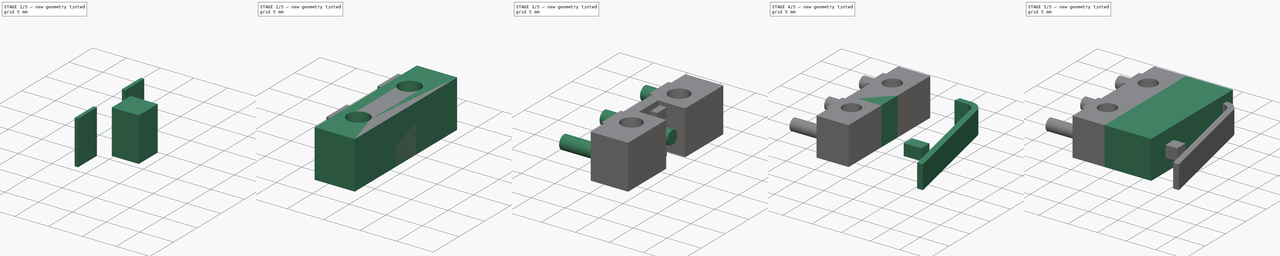
[diagram: build sequence overview — one tinted view per stage of 5, left to right]
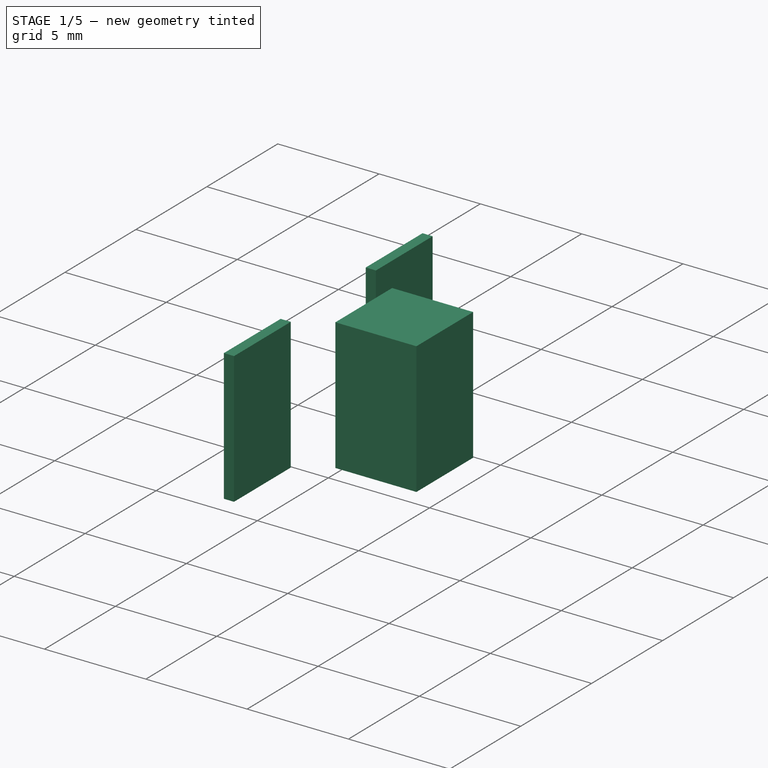
[diagram: stage 1 of 5 — iso view after this stage's code; geometry added in this stage tinted green]
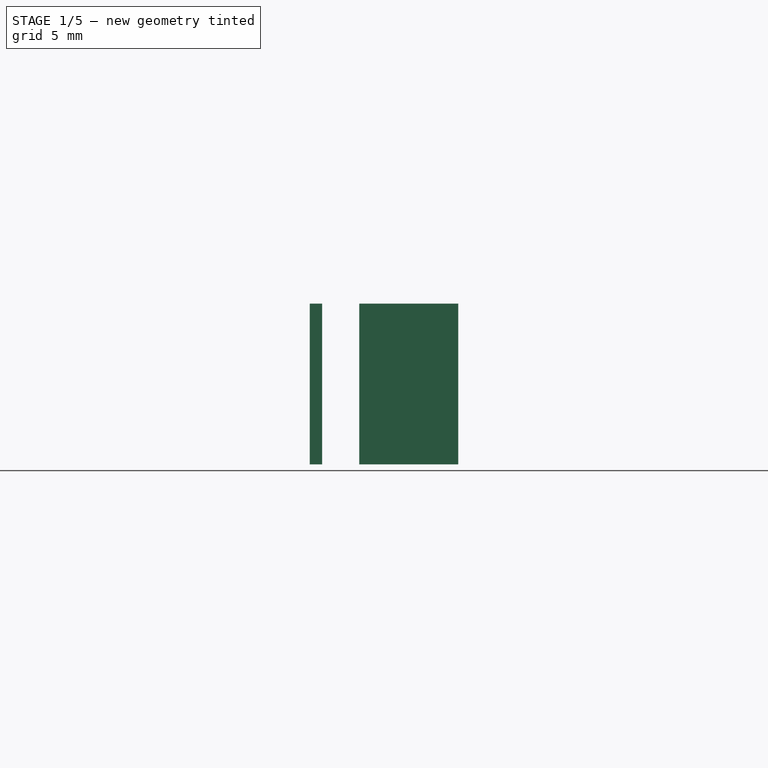
[diagram: stage 1 of 5 — front view after this stage's code; geometry added in this stage tinted green]
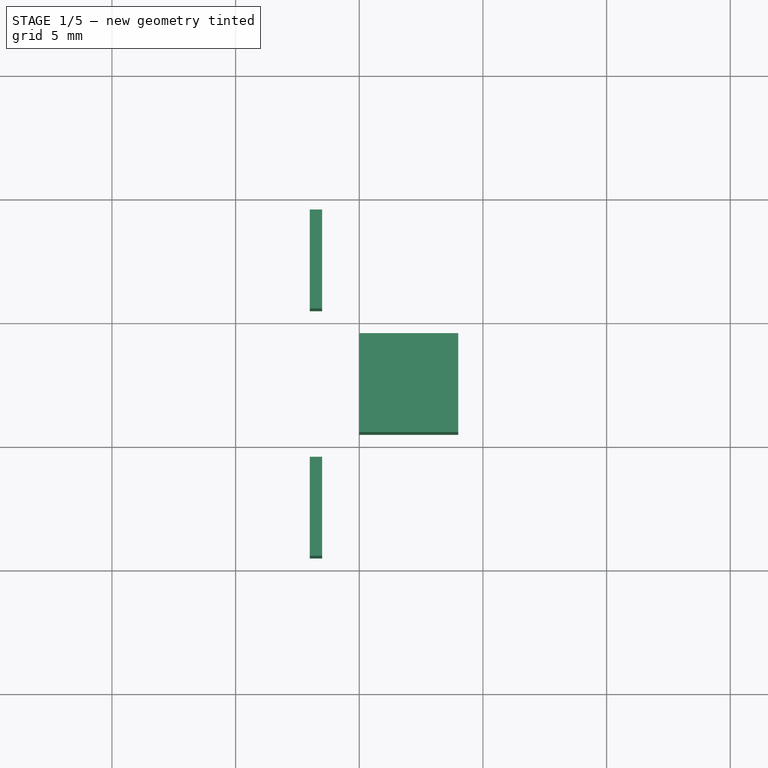
[diagram: stage 1 of 5 — top view after this stage's code; geometry added in this stage tinted green]
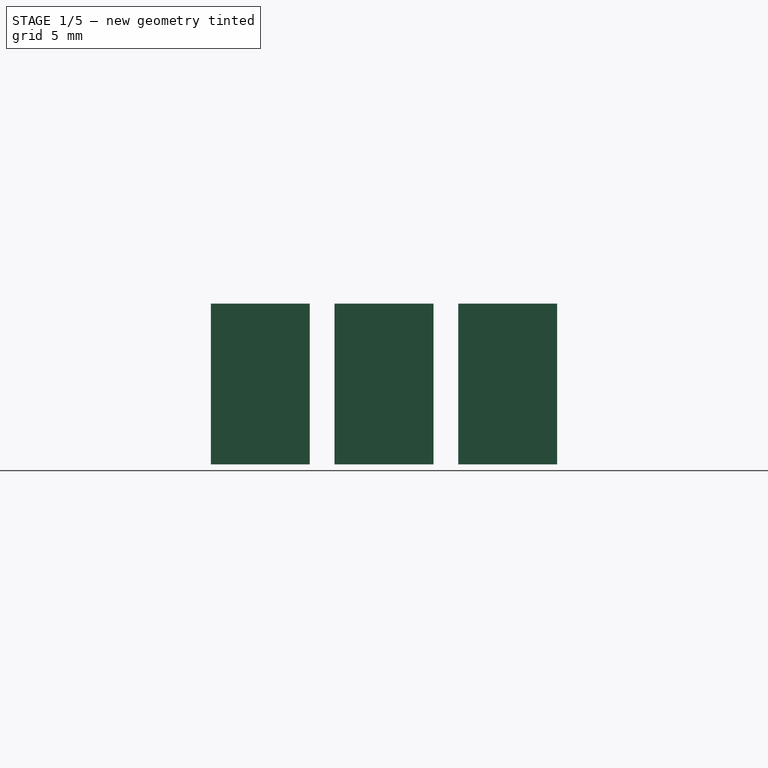
[diagram: stage 1 of 5 — right view after this stage's code; geometry added in this stage tinted green]
FCSTD DOCUMENT  (FreeCAD 0.14R3702 (Git))
Label: endstop01
License: CC-BY 3.0
LicenseURL: http://creativecommons.org/licenses/by/3.0/
objects: Part::Box×10, Part::Cut×4, Part::MultiFuse×4, Sketcher::SketchObject×3, Part::Feature×3, Part::Cylinder×2, Part::Sweep×1, PartDesign::Pad×1, App::DocumentObjectGroup×1
note: 29 computed .brp shape members not serialized (recipe doc carries the construction recipe); baked Part::Feature solids carry a one-line shape summary decoded from their .brp

FEATURE [Part::Box] Box002  label="Cubo002"
  Height = 6.5
  Length = 0.5
  Placement = pos=(8,20.5,2.25) rot=(0,0,1;0rad)
  Width = 4
FEATURE [Part::Box] Box003  label="Cubo003"
  Height = 6.5
  Length = 0.5
  Placement = pos=(8,10.5,2.25) rot=(0,0,1;0rad)
  Width = 4
FEATURE [Part::Box] Box004  label="Cubo004"
  Height = 6.5
  Length = 4
  Placement = pos=(10,15.5,2.25) rot=(0,0,1;0rad)
  Width = 4
FEATURE [Part::Box] Box005  label="Cubo005"
  Height = 6.5
  Length = 1
  Placement = pos=(11,16.5,2.25) rot=(0,0,1;0rad)
  Width = 2
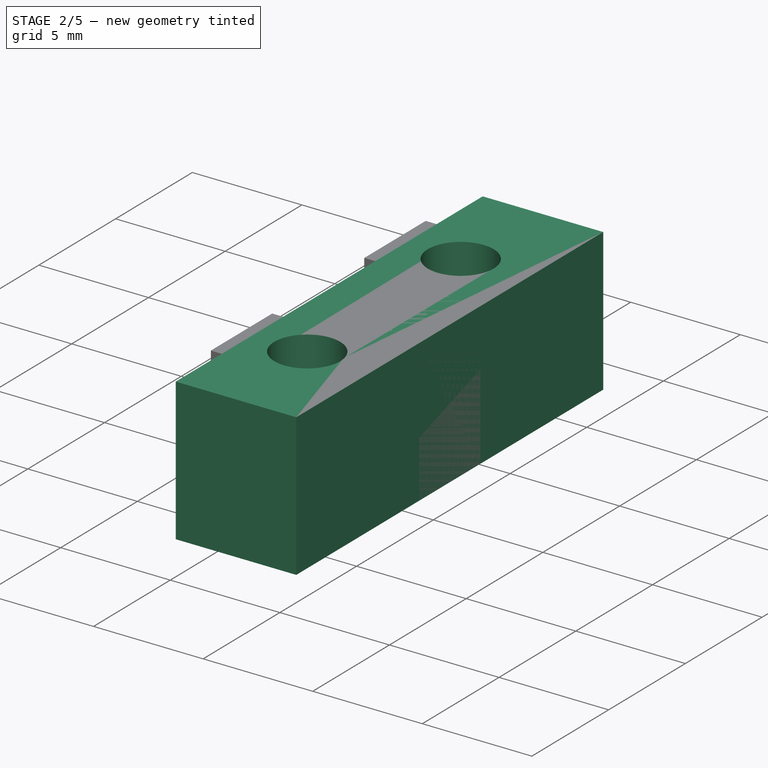
[diagram: stage 2 of 5 — iso view after this stage's code; geometry added in this stage tinted green]
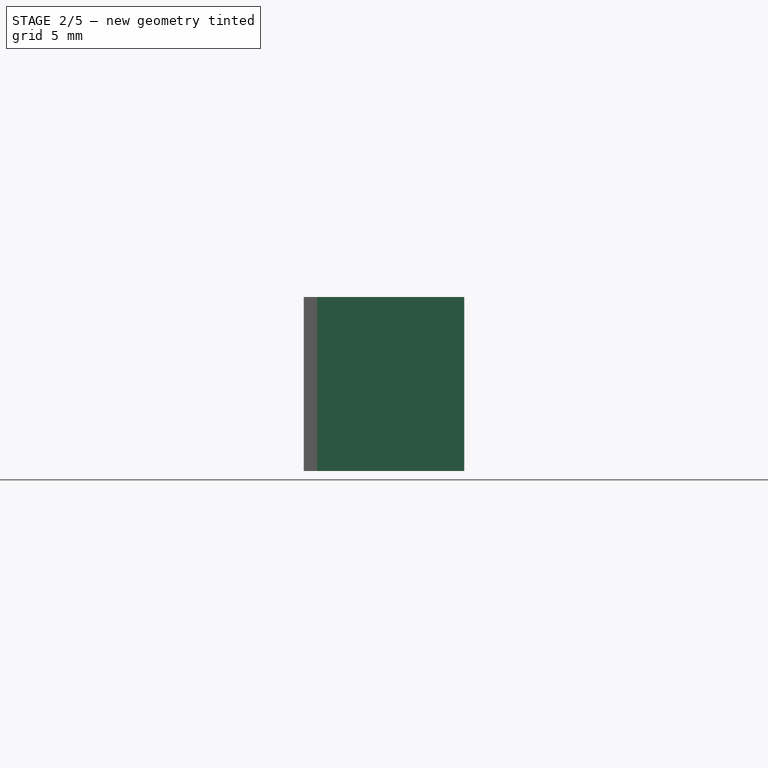
[diagram: stage 2 of 5 — front view after this stage's code; geometry added in this stage tinted green]
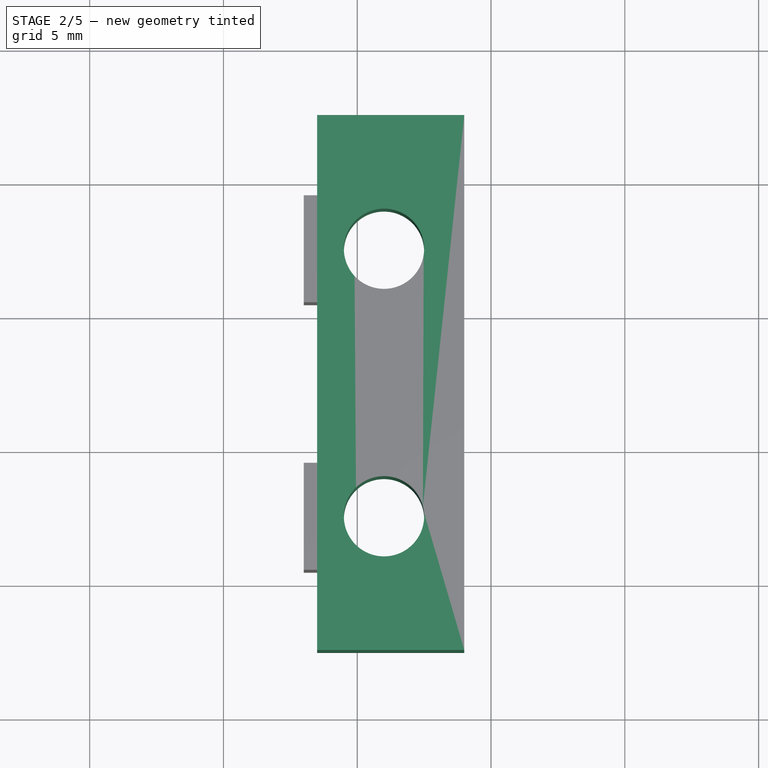
[diagram: stage 2 of 5 — top view after this stage's code; geometry added in this stage tinted green]
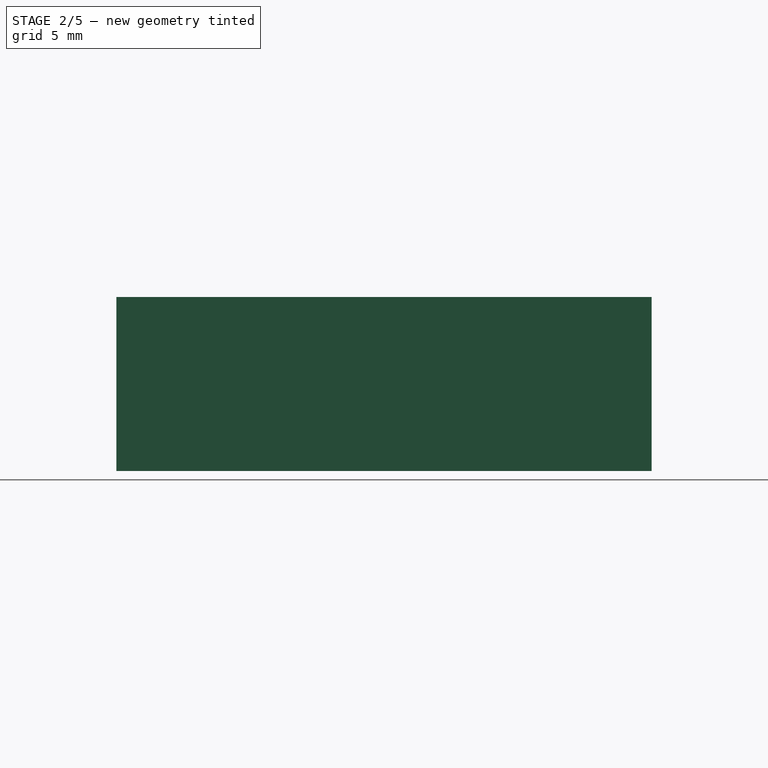
[diagram: stage 2 of 5 — right view after this stage's code; geometry added in this stage tinted green]
FEATURE [Part::Box] Box  label="Cubo"
  Height = 6.5
  Length = 5.5
  Placement = pos=(8.5,7.5,2.25) rot=(0,0,1;0rad)
  Width = 20
FEATURE [Part::Cylinder] Cylinder  label="Cilindro"
  Angle = 360
  Height = 10
  Placement = pos=(11,22.5,1) rot=(0,0,1;0rad)
  Radius = 1.5
FEATURE [Part::Cylinder] Cylinder001  label="Cilindro001"
  Angle = 360
  Height = 10
  Placement = pos=(11,12.5,1) rot=(0,0,1;0rad)
  Radius = 1.5
FEATURE [Part::Cut] Cut
  Base = -> Box
  Tool = -> Cylinder001
FEATURE [Part::Cut] Cut001
  Base = -> Cut
  Tool = -> Cylinder
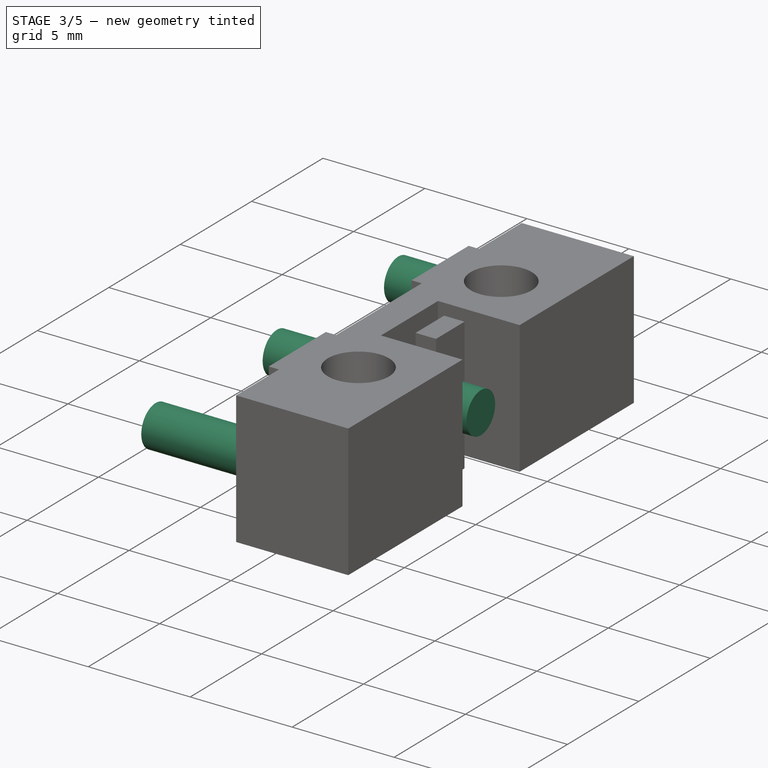
[diagram: stage 3 of 5 — iso view after this stage's code; geometry added in this stage tinted green]
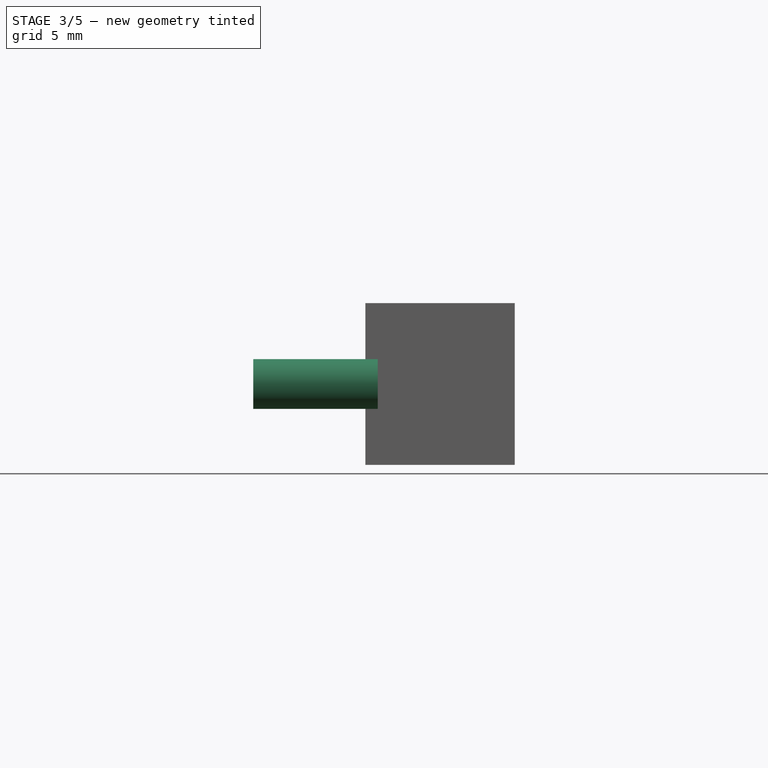
[diagram: stage 3 of 5 — front view after this stage's code; geometry added in this stage tinted green]
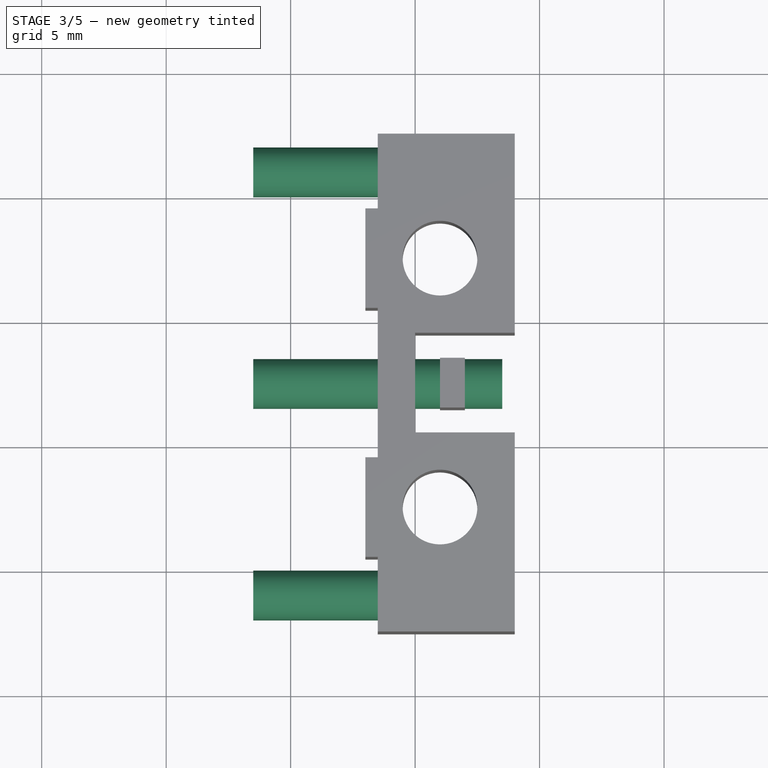
[diagram: stage 3 of 5 — top view after this stage's code; geometry added in this stage tinted green]
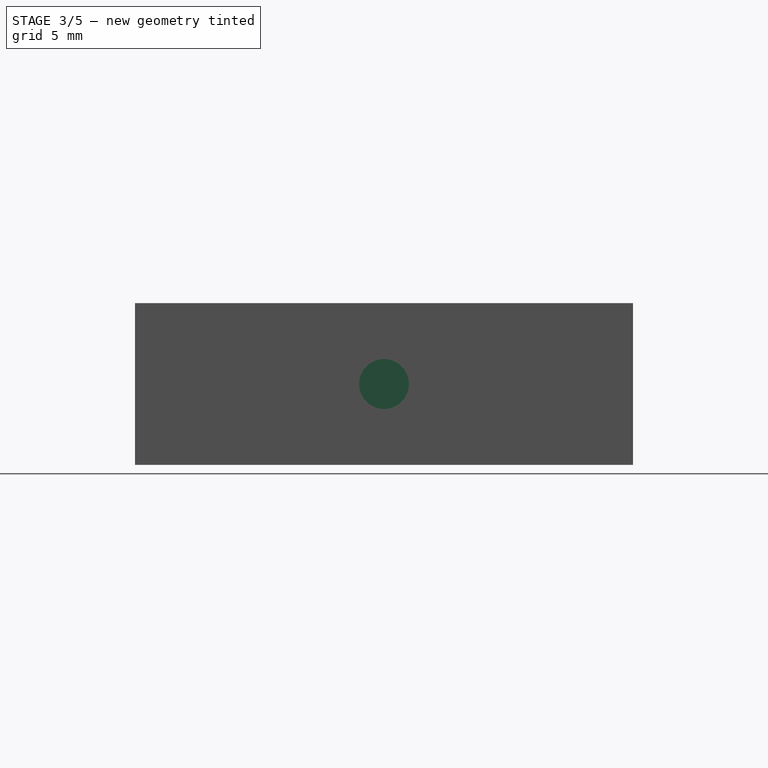
[diagram: stage 3 of 5 — right view after this stage's code; geometry added in this stage tinted green]
FEATURE [Part::MultiFuse] Fusion
  Shapes = -> [Cut001,Box002,Box003]
FEATURE [Part::Cut] Cut002
  Base = -> Fusion
  Tool = -> Box004
FEATURE [Part::MultiFuse] Fusion001
  Shapes = -> [Cut002,Box005]
FEATURE [Sketcher::SketchObject] Sketch002
  ExternalGeometry = -> [Fusion001]
  Placement = pos=(8.5,0,0) rot=(0.57735,-0.57735,-0.57735;2.0944rad)
  Support = -> Fusion001 [Face18]
  sketch-geometry (4):
    g0: Circle CenterX=-26 CenterY=5.5 CenterZ=0 NormalX=0 NormalY=0 NormalZ=1 Radius=1
    g1: Circle CenterX=-17.5 CenterY=5.5 CenterZ=0 NormalX=0 NormalY=0 NormalZ=1 Radius=1
    g2: Circle CenterX=-9 CenterY=5.5 CenterZ=0 NormalX=0 NormalY=0 NormalZ=1 Radius=1
    g3: LineSegment [constr] StartX=-27.5 StartY=5.5 StartZ=0 EndX=-7.5 EndY=5.5 EndZ=0
  constraints (13):
    c: Radius(g2) = 1
    c: Horizontal(g3)
    c: Symmetric(g-3,g-3,g3)
    c: PointOnObject(g3,g-3)
    c: PointOnObject(g3,g-4)
    c: PointOnObject(g0,g3)
    c: PointOnObject(g1,g3)
    c: PointOnObject(g2,g3)
    c: Equal(g0,g1)
    c: Equal(g1,g2)
    c: DistanceX(g-7,g1) = -3
    c: DistanceX(g2,g-4) = 1.5
    c: DistanceX(g0,g-3) = -1.5
FEATURE [PartDesign::Pad] Pad
  Length = 10
  Length2 = 100
  Midplane = true
  Reversed = true
  Sketch = -> Sketch002
  Type = 0
FEATURE [Part::Feature] Pad001  label="Inferior"
  Placement = pos=(-15,-17.5,-5.5) rot=(0,0,1;0rad)
  shape: bbox 10.5 x 20 x 6.5 mm, 37 faces (baked)
FEATURE [Part::Feature] Fusion004  label="Superior"
  Placement = pos=(-15,-17.5,-5.5) rot=(0,0,1;0rad)
  shape: bbox 14 x 20 x 6.5 mm, 19 faces (baked)
FEATURE [Part::Feature] Sweep001  label="Pestaña001"
  Placement = pos=(-15,-17.5,-5.5) rot=(0,0,1;0rad)
  shape: bbox 8.605 x 20.99 x 4 mm, 10 faces (baked)
FEATURE [App::DocumentObjectGroup] Grupo  label="Pieza Terminada"
  Group = -> [Pad001,Fusion004,Sweep001]
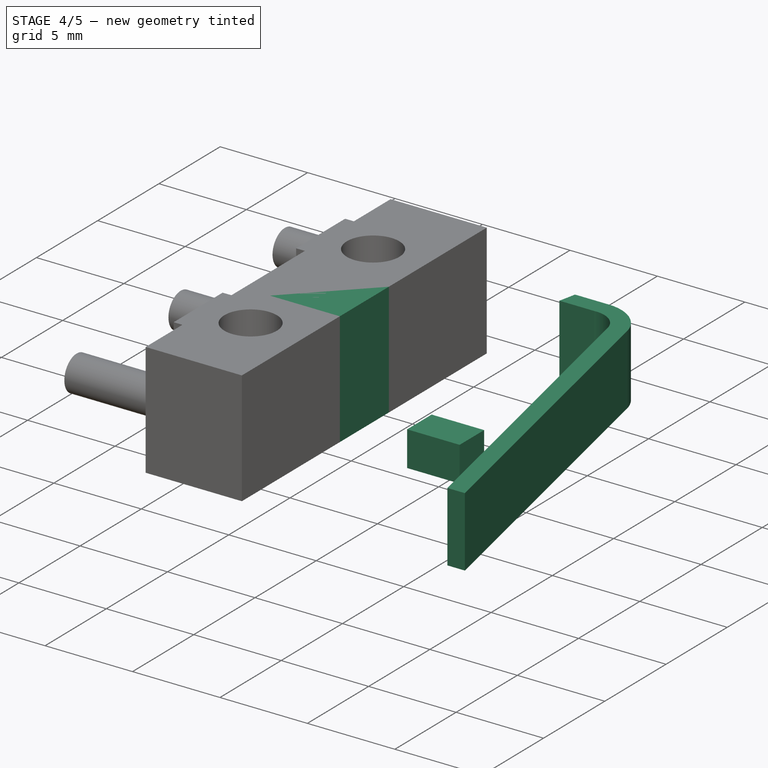
[diagram: stage 4 of 5 — iso view after this stage's code; geometry added in this stage tinted green]
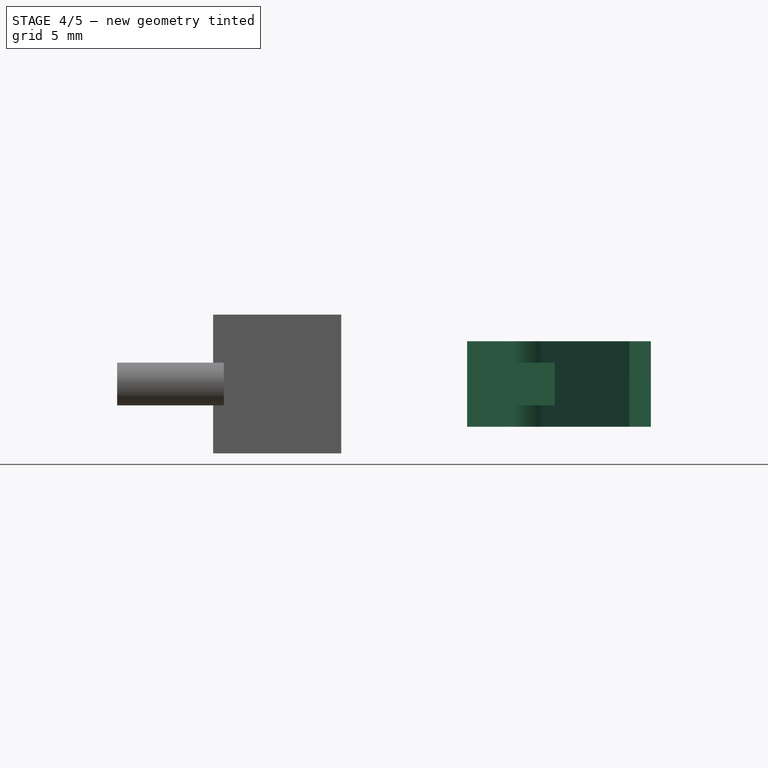
[diagram: stage 4 of 5 — front view after this stage's code; geometry added in this stage tinted green]
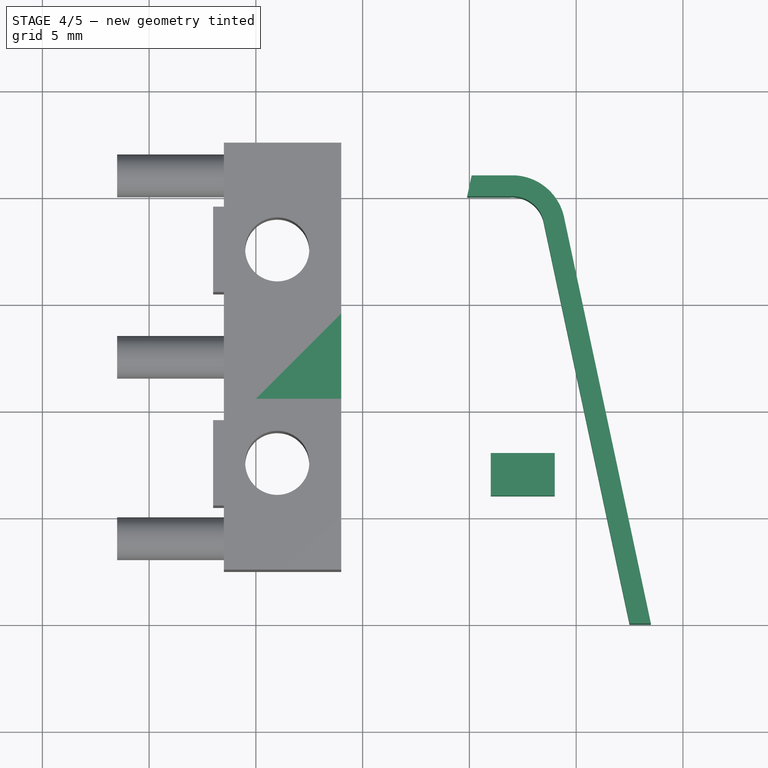
[diagram: stage 4 of 5 — top view after this stage's code; geometry added in this stage tinted green]
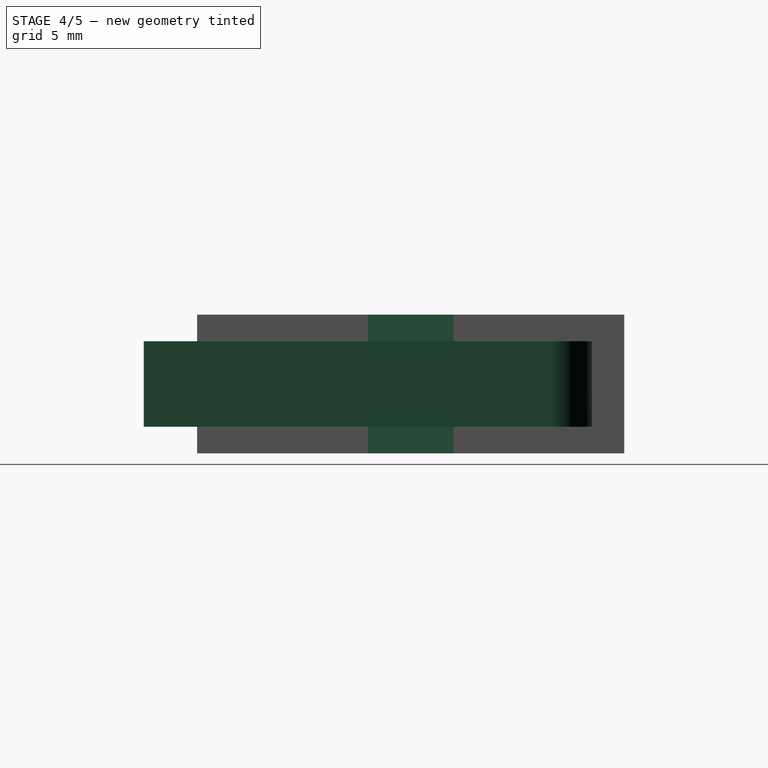
[diagram: stage 4 of 5 — right view after this stage's code; geometry added in this stage tinted green]
FEATURE [Part::Box] Box006  label="Cubo006"
  Height = 6.5
  Length = 1
  Placement = pos=(11,16.5,2.25) rot=(0,0,1;0rad)
  Width = 2
FEATURE [Part::Box] Box007  label="Cubo007"
  Height = 6.5
  Length = 4
  Placement = pos=(10,15.5,2.25) rot=(0,0,1;0rad)
  Width = 4
FEATURE [Part::Box] Box008  label="Cubo008"
  Height = 2
  Length = 3
  Placement = pos=(21,11,4.5) rot=(0,0,1;0rad)
  Width = 2
FEATURE [Part::Box] Box009  label="Cubo009"
  Height = 3.25
  Length = 10
  Placement = pos=(22,5,2.25) rot=(0,0,1;0rad)
  Width = 22.5
FEATURE [Sketcher::SketchObject] Sketch
  ExternalGeometry = -> [Box009]
  Placement = pos=(22,5,5.5) rot=(0,0,1;0rad)
  Support = -> Box009 [Face6]
  sketch-geometry (3):
    g0: LineSegment StartX=1.95581 StartY=18.9181 StartZ=0 EndX=6 EndY=0 EndZ=0
    g1: ArcOfCircle CenterX=0 CenterY=18.5 CenterZ=0 NormalX=0 NormalY=0 NormalZ=1 Radius=2 StartAngle=0.210599 EndAngle=1.5708
    g2: LineSegment StartX=0 StartY=20.5 StartZ=0 EndX=-2 EndY=20.5 EndZ=0
  constraints (11):
    c: Coincident(g1,g0)
    c: Tangent(g0,g1)
    c: Radius(g1) = 2
    c: PointOnObject(g0,g-3)
    c: PointOnObject(g1,g-2)
    c: DistanceY(g1,g-4) = 2
    c: PointOnObject(g1,g-2)
    c: DistanceX(g-1,g0) = 6
    c: Coincident(g2,g1)
    c: Horizontal(g2)
    c: DistanceX(g2) = -2
FEATURE [Sketcher::SketchObject] Sketch001
  ExternalGeometry = -> [Box009]
  Placement = pos=(22,5,2.25) rot=(1,0,0;1.5708rad)
  Support = -> Box009 [Face3]
  sketch-geometry (5):
    g0: LineSegment StartX=5.5 StartY=5.25 StartZ=0 EndX=6.5 EndY=5.25 EndZ=0
    g1: LineSegment StartX=6.5 StartY=5.25 StartZ=0 EndX=6.5 EndY=1.25 EndZ=0
    g2: LineSegment StartX=6.5 StartY=1.25 StartZ=0 EndX=5.5 EndY=1.25 EndZ=0
    g3: LineSegment StartX=5.5 StartY=1.25 StartZ=0 EndX=5.5 EndY=5.25 EndZ=0
    g4: LineSegment [constr] StartX=6 StartY=6.25 StartZ=0 EndX=6 EndY=0.25 EndZ=0
  constraints (15):
    c: Coincident(g0,g1)
    c: Coincident(g1,g2)
    c: Coincident(g2,g3)
    c: Coincident(g3,g0)
    c: Horizontal(g0)
    c: Horizontal(g2)
    c: Vertical(g1)
    c: Vertical(g3)
    c: DistanceY(g1) = -4
    c: DistanceX(g0) = 1
    c: Symmetric(g0,g1,g-3)
    c: DistanceX(g4,g-3) = -6
    c: Symmetric(g4,g4,g-3)
    c: Symmetric(g2,g1,g4)
    c: DistanceY(g4) = -6
FEATURE [Part::Sweep] Sweep  label="Pestaña"
  Frenet = false
  Sections = -> [Sketch001]
  Solid = true
  Spine = -> Sketch [Edge2]
  Transition = 1
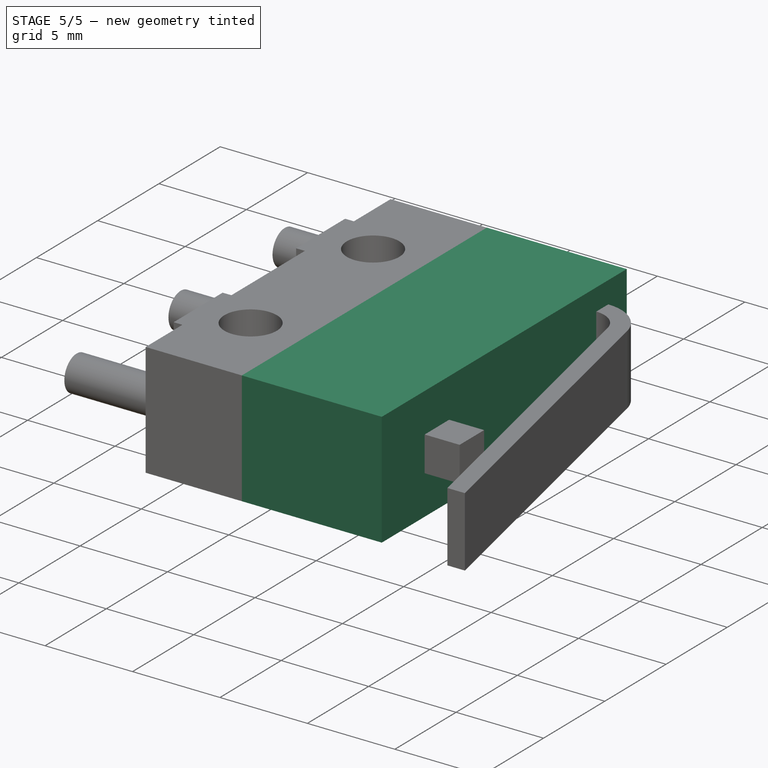
[diagram: stage 5 of 5 — iso view after this stage's code; geometry added in this stage tinted green]
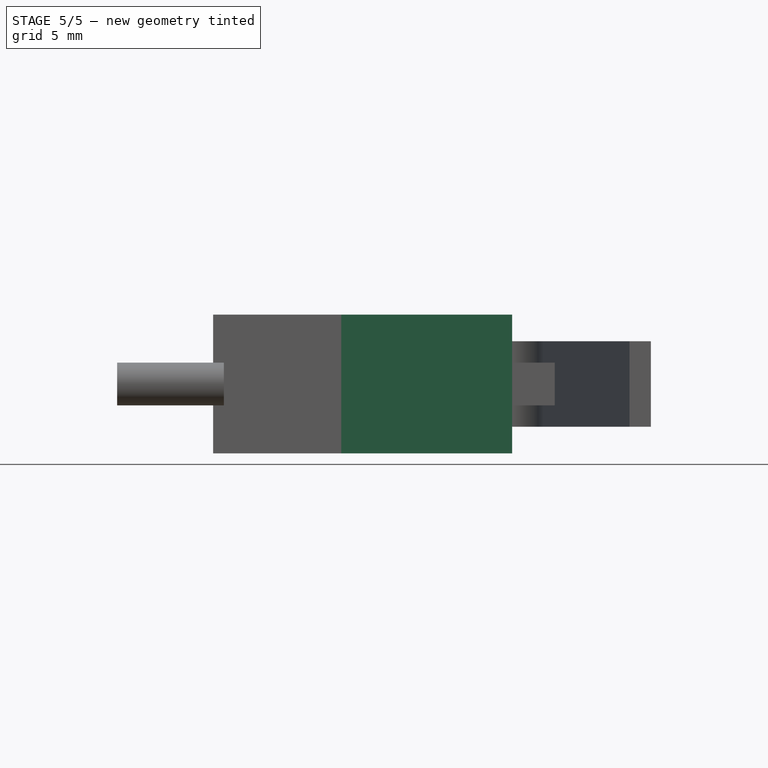
[diagram: stage 5 of 5 — front view after this stage's code; geometry added in this stage tinted green]
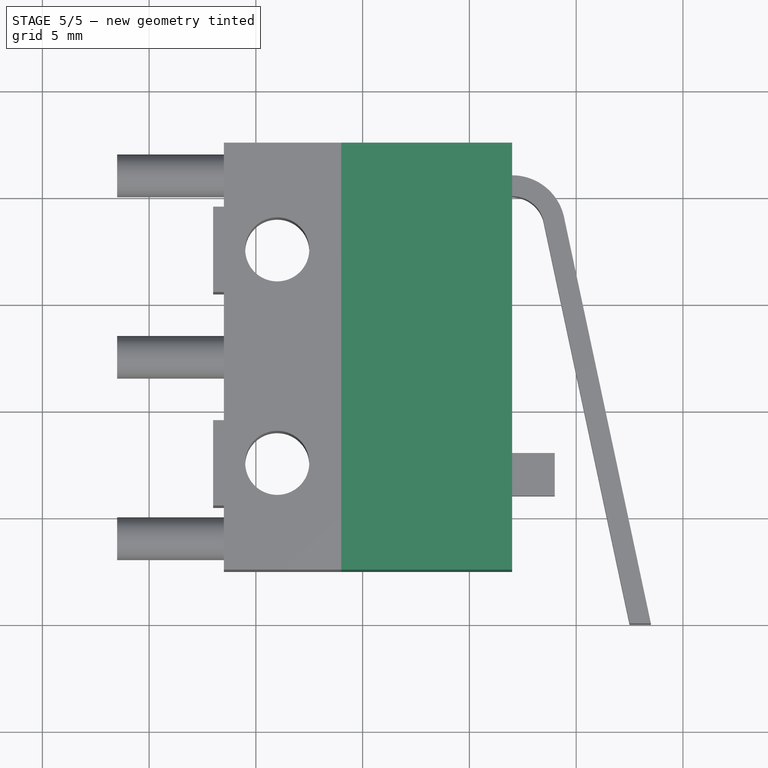
[diagram: stage 5 of 5 — top view after this stage's code; geometry added in this stage tinted green]
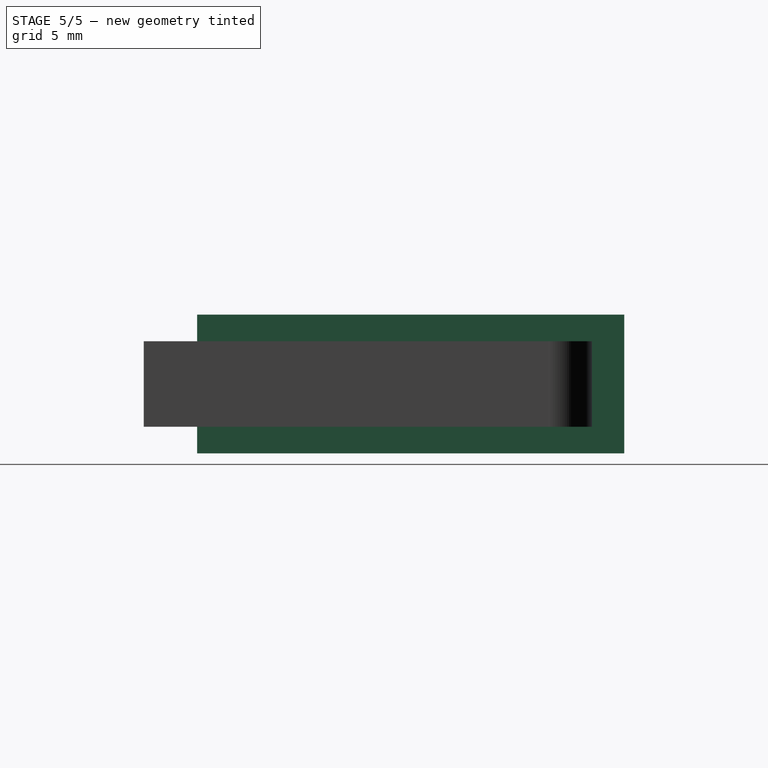
[diagram: stage 5 of 5 — right view after this stage's code; geometry added in this stage tinted green]
FEATURE [Part::Box] Box001  label="Cubo001"
  Height = 6.5
  Length = 8
  Placement = pos=(14,7.5,2.25) rot=(0,0,1;0rad)
  Width = 20
FEATURE [Part::Cut] Cut003
  Base = -> Box007
  Tool = -> Box006
FEATURE [Part::MultiFuse] Fusion002
  Shapes = -> [Cut003,Box001]
FEATURE [Part::MultiFuse] Fusion003
  Shapes = -> [Fusion002,Box008]
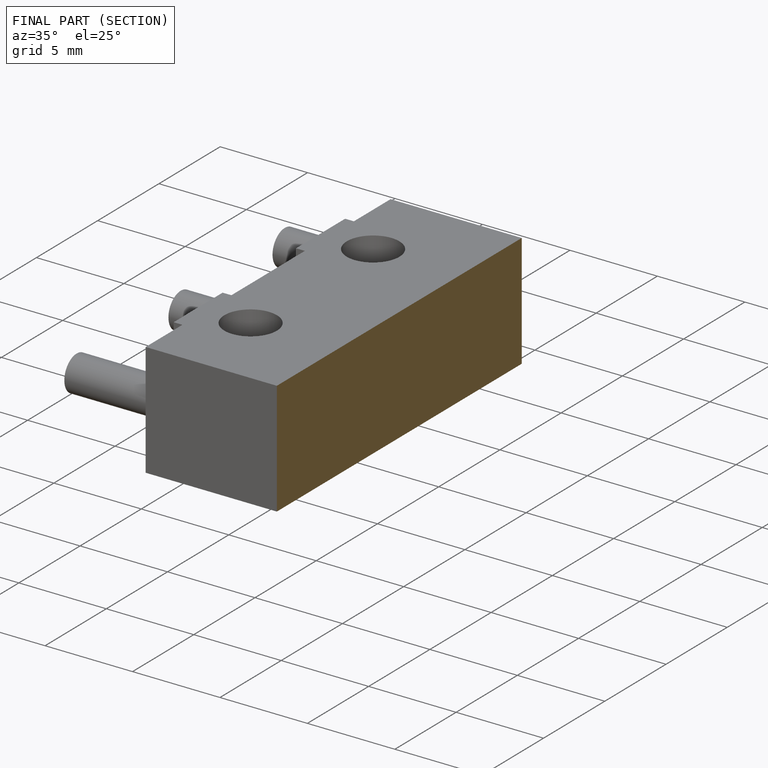
[diagram: finished part — half-section view (interior)]
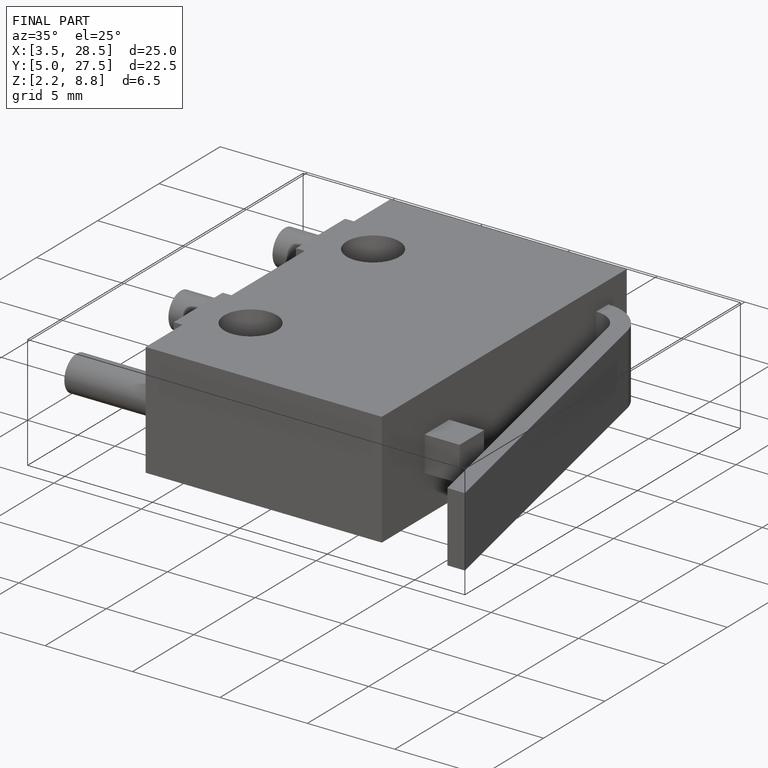
[diagram: finished part — iso view with bounding-box wireframe]
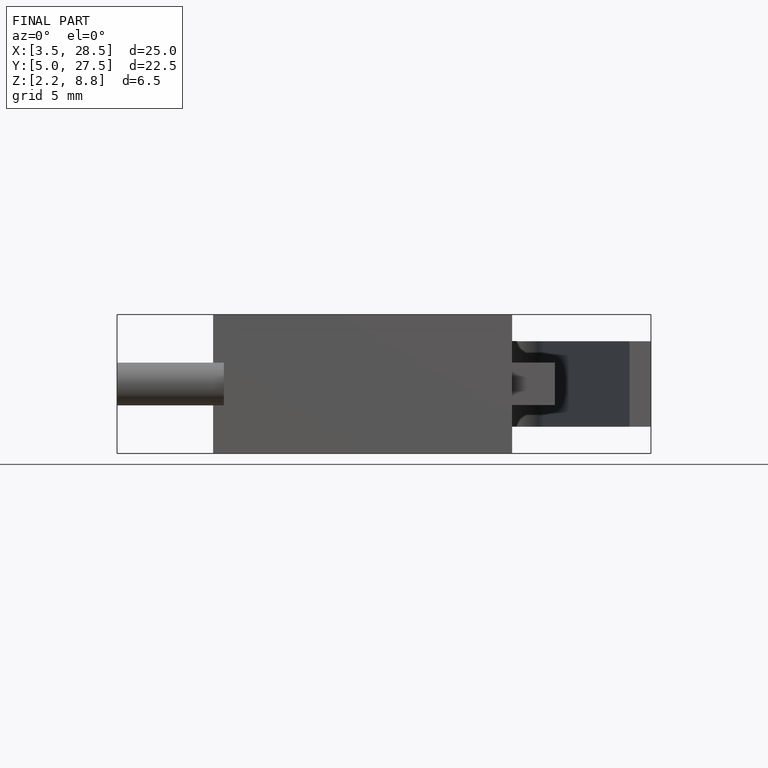
[diagram: finished part — front view with bounding-box wireframe]
